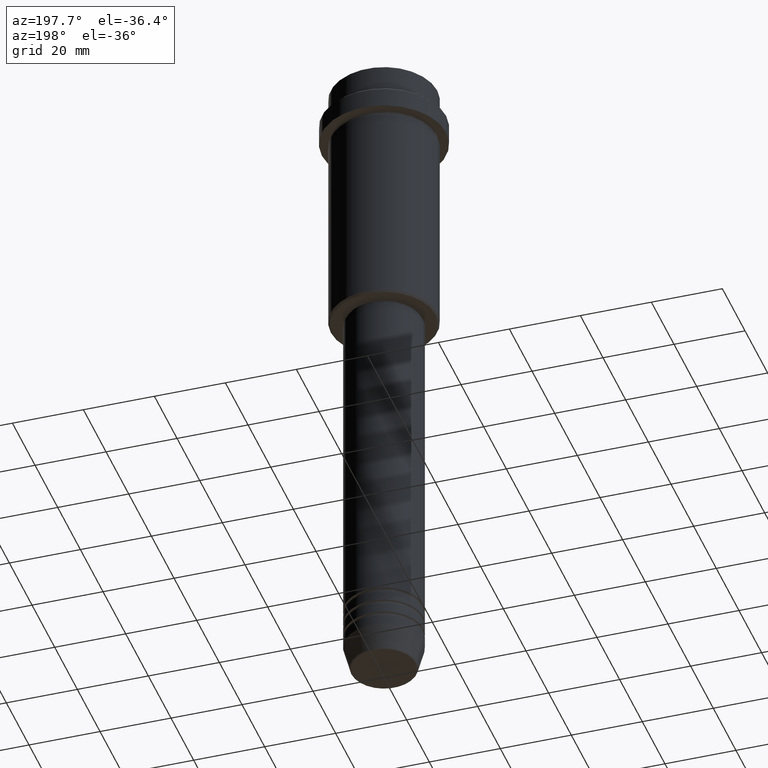
[diagram: clean part render]
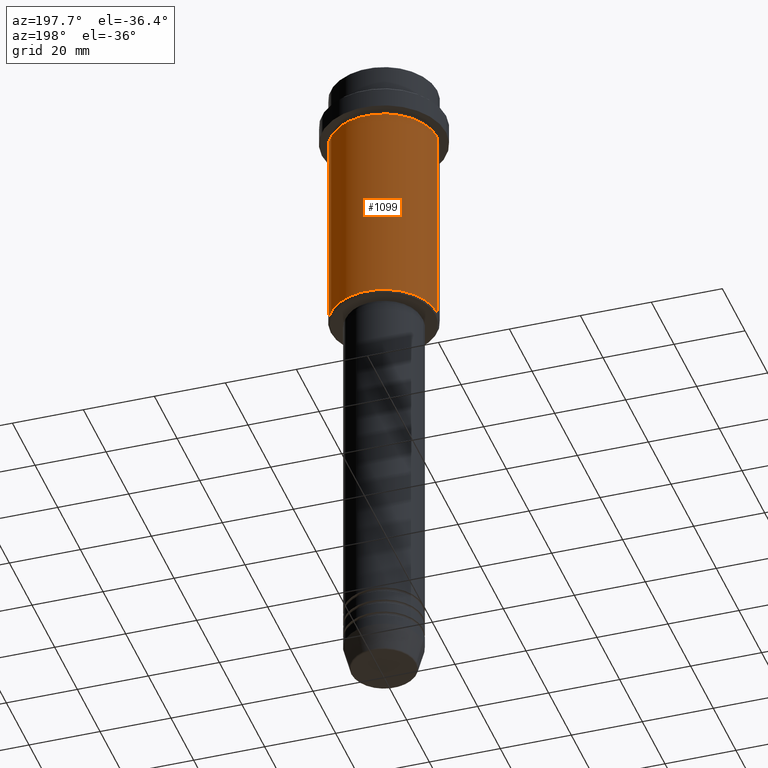
[diagram: same view with one face highlighted and labeled with its STEP entity id]
A machine part, auxiliary view. The second image highlights one B-rep face of the part: STEP entity #1099.
In plain terms, the highlighted cylindrical surface (partial cylindrical patch) has radius 15 mm, axis along (-0, -0, 1).
Its self-contained STEP definition (entity closure, byte-faithful):
#87 = EDGE_CURVE ( 'NONE', #142, #242, #895, .T. ) ;
#116 = DIRECTION ( 'NONE',  ( 1.000000000000000000, 0.000000000000000000, 0.000000000000000000 ) ) ;
#123 = CARTESIAN_POINT ( 'NONE',  ( 0.000000000000000000, 0.000000000000000000, 0.000000000000000000 ) ) ;
#142 = VERTEX_POINT ( 'NONE', #1191 ) ;
#168 = EDGE_CURVE ( 'NONE', #242, #1318, #1264, .T. ) ;
#170 = CARTESIAN_POINT ( 'NONE',  ( 15.00000000000000178, 0.000000000000000000, -16.00000000000000000 ) ) ;
#242 = VERTEX_POINT ( 'NONE', #170 ) ;
#301 = DIRECTION ( 'NONE',  ( 1.000000000000000000, 0.000000000000000000, 0.000000000000000000 ) ) ;
#352 = CARTESIAN_POINT ( 'NONE',  ( 15.00000000000000000, 0.000000000000000000, 0.000000000000000000 ) ) ;
#386 = AXIS2_PLACEMENT_3D ( 'NONE', #875, #851, #301 ) ;
#472 = EDGE_CURVE ( 'NONE', #142, #1103, #597, .T. ) ;
#566 = EDGE_LOOP ( 'NONE', ( #909, #902, #847, #1051 ) ) ;
#597 = CIRCLE ( 'NONE', #1386, 15.00000000000000000 ) ;
#611 = LINE ( 'NONE', #1362, #636 ) ;
#636 = VECTOR ( 'NONE', #1042, 1000.000000000000000 ) ;
#676 = DIRECTION ( 'NONE',  ( -0.000000000000000000, -0.000000000000000000, 1.000000000000000000 ) ) ;
#847 = ORIENTED_EDGE ( 'NONE', *, *, #168, .F. ) ;
#851 = DIRECTION ( 'NONE',  ( -0.000000000000000000, -0.000000000000000000, 1.000000000000000000 ) ) ;
#856 = FACE_OUTER_BOUND ( 'NONE', #566, .T. ) ;
#875 = CARTESIAN_POINT ( 'NONE',  ( 0.000000000000000000, 0.000000000000000000, -16.00000000000000000 ) ) ;
#895 = LINE ( 'NONE', #352, #1404 ) ;
#902 = ORIENTED_EDGE ( 'NONE', *, *, #1401, .T. ) ;
#909 = ORIENTED_EDGE ( 'NONE', *, *, #472, .T. ) ;
#988 = AXIS2_PLACEMENT_3D ( 'NONE', #123, #676, #116 ) ;
#1036 = CARTESIAN_POINT ( 'NONE',  ( -15.00000000000000355, 1.836970198721029983E-15, -16.00000000000000000 ) ) ;
#1038 = CARTESIAN_POINT ( 'NONE',  ( 0.000000000000000000, 0.000000000000000000, -74.50000000000000000 ) ) ;
#1042 = DIRECTION ( 'NONE',  ( -0.000000000000000000, -0.000000000000000000, 1.000000000000000000 ) ) ;
#1051 = ORIENTED_EDGE ( 'NONE', *, *, #87, .F. ) ;
#1082 = CYLINDRICAL_SURFACE ( 'NONE', #988, 15.00000000000000000 ) ;
#1095 = CARTESIAN_POINT ( 'NONE',  ( -15.00000000000000000, 1.836970198721029589E-15, -74.50000000000000000 ) ) ;
#1099 = ADVANCED_FACE ( 'NONE', ( #856 ), #1082, .T. ) ;
#1103 = VERTEX_POINT ( 'NONE', #1095 ) ;
#1191 = CARTESIAN_POINT ( 'NONE',  ( 15.00000000000000000, 0.000000000000000000, -74.50000000000000000 ) ) ;
#1239 = DIRECTION ( 'NONE',  ( -0.000000000000000000, -0.000000000000000000, 1.000000000000000000 ) ) ;
#1256 = DIRECTION ( 'NONE',  ( -1.000000000000000000, 0.000000000000000000, 0.000000000000000000 ) ) ;
#1264 = CIRCLE ( 'NONE', #386, 15.00000000000000178 ) ;
#1318 = VERTEX_POINT ( 'NONE', #1036 ) ;
#1362 = CARTESIAN_POINT ( 'NONE',  ( -15.00000000000000000, 1.836970198721029589E-15, 0.000000000000000000 ) ) ;
#1386 = AXIS2_PLACEMENT_3D ( 'NONE', #1038, #1239, #1256 ) ;
#1390 = DIRECTION ( 'NONE',  ( -0.000000000000000000, -0.000000000000000000, 1.000000000000000000 ) ) ;
#1401 = EDGE_CURVE ( 'NONE', #1103, #1318, #611, .T. ) ;
#1404 = VECTOR ( 'NONE', #1390, 1000.000000000000000 ) ;